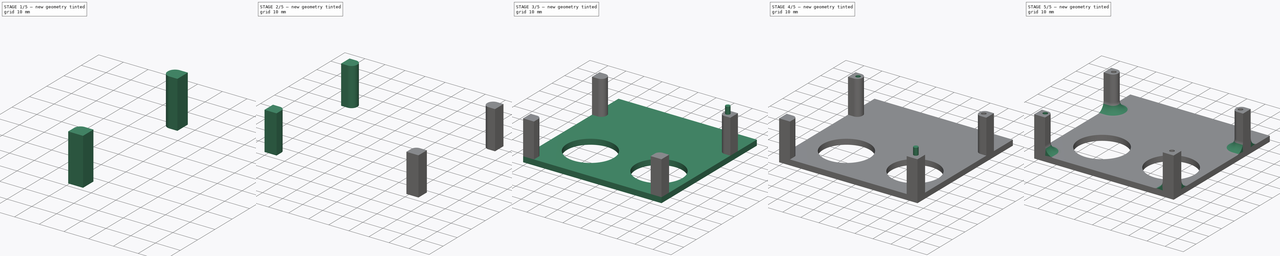
[diagram: build sequence overview — one tinted view per stage of 5, left to right]
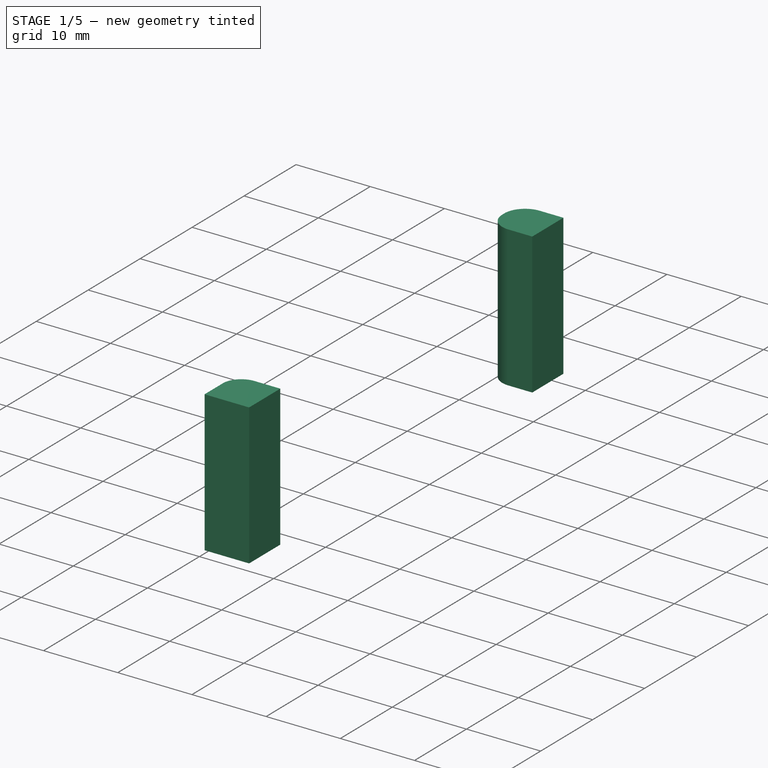
[diagram: stage 1 of 5 — iso view after this stage's code; geometry added in this stage tinted green]
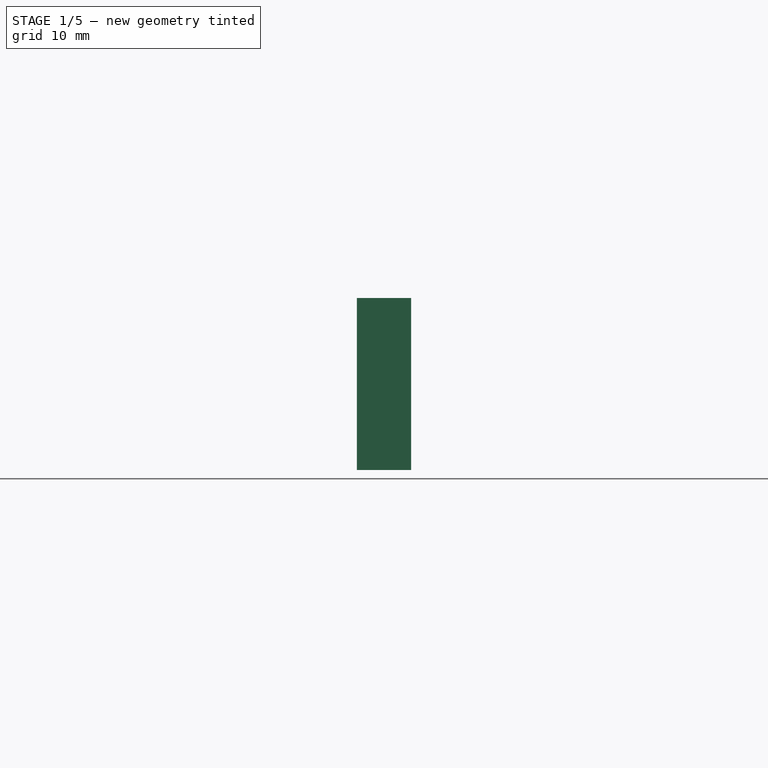
[diagram: stage 1 of 5 — front view after this stage's code; geometry added in this stage tinted green]
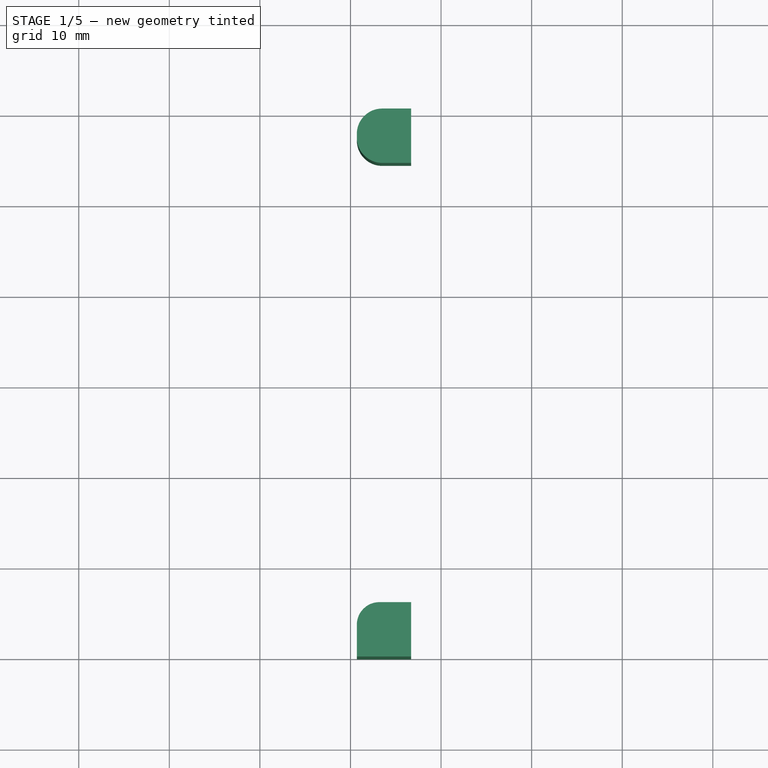
[diagram: stage 1 of 5 — top view after this stage's code; geometry added in this stage tinted green]
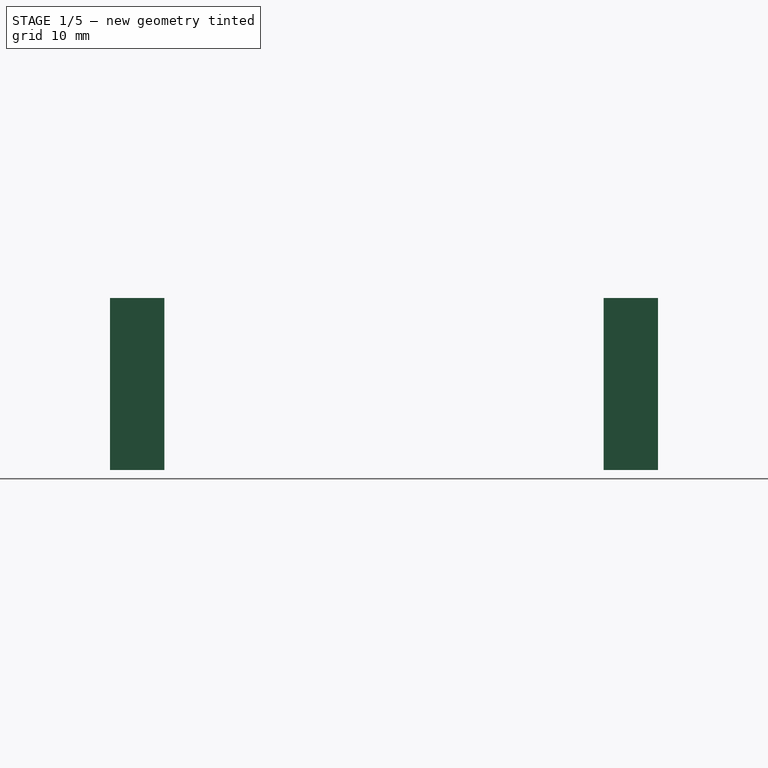
[diagram: stage 1 of 5 — right view after this stage's code; geometry added in this stage tinted green]
FCSTD DOCUMENT  (FreeCAD 0.19R24291 (Git))
Label: vacuum-tube-top-plate
License: All rights reserved
LicenseURL: http://en.wikipedia.org/wiki/All_rights_reserved
objects: Part::Fillet×5, Part::Cylinder×4, Part::Box×4, Part::Cut×4, Sketcher::SketchObject×1, Part::Extrusion×1, Part::MultiFuse×1
note: 20 computed .brp shape members not serialized (recipe doc carries the construction recipe); baked Part::Feature solids carry a one-line shape summary decoded from their .brp

FEATURE [Part::Box] Box001  label="post-br"
  AttacherType = Attacher::AttachEngine3D
  Height = 19
  Length = 6
  Placement = pos=(70.7,0,3) rot=(0,0,1;0rad)
  Width = 6
FEATURE [Part::Box] Box002  label="post-tr"
  AttacherType = Attacher::AttachEngine3D
  Height = 19
  Length = 6
  Placement = pos=(70.7,54.5,3) rot=(0,0,1;0rad)
  Width = 6
FEATURE [Part::Fillet] Fillet002
  Base = -> Box002
  Edges = 2 edges r=2.8: [Edge1,Edge3]
FEATURE [Part::Fillet] Fillet003
  Base = -> Box001
  Edges = 1 edges r=2.5: [Edge3]
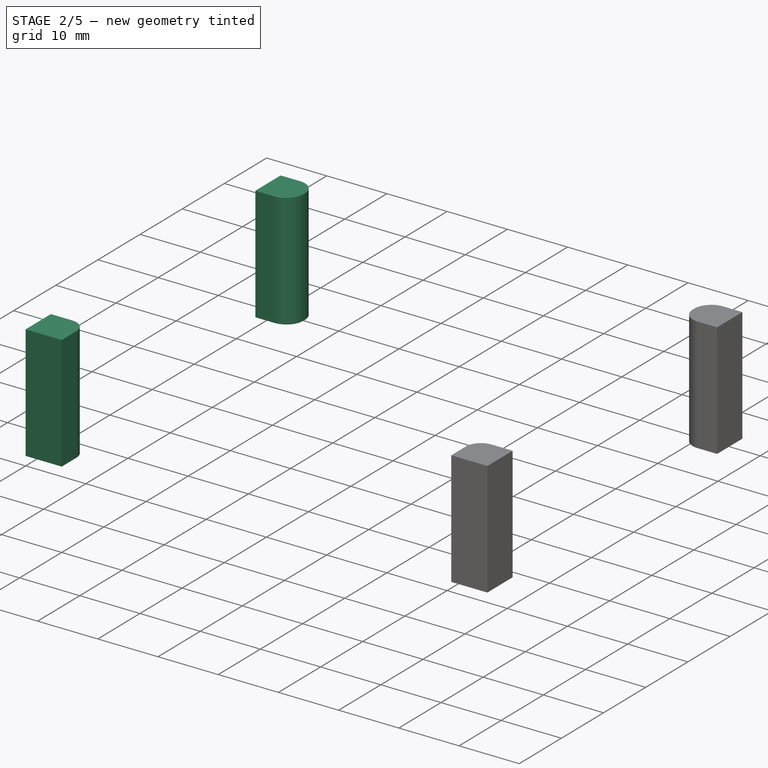
[diagram: stage 2 of 5 — iso view after this stage's code; geometry added in this stage tinted green]
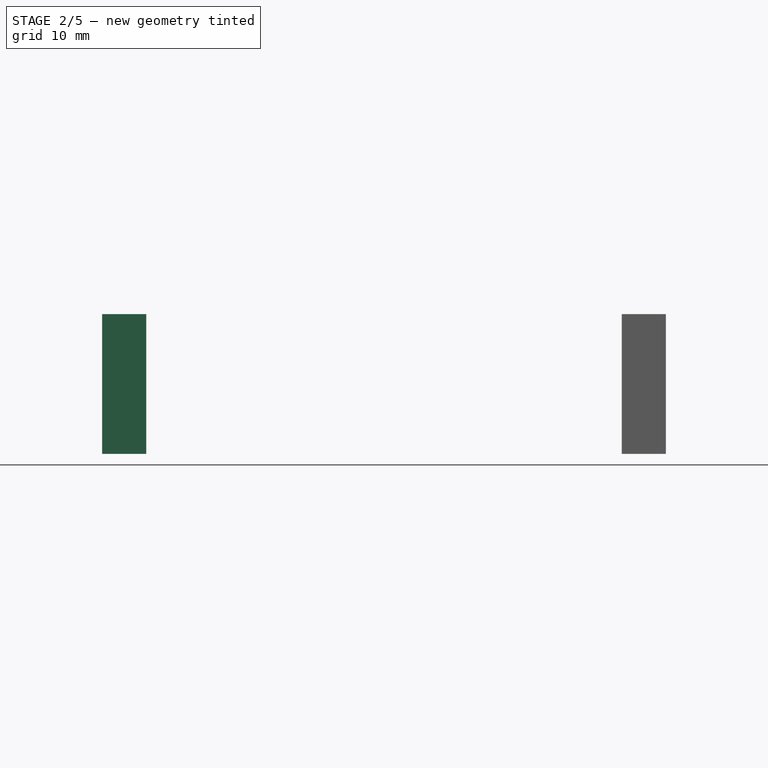
[diagram: stage 2 of 5 — front view after this stage's code; geometry added in this stage tinted green]
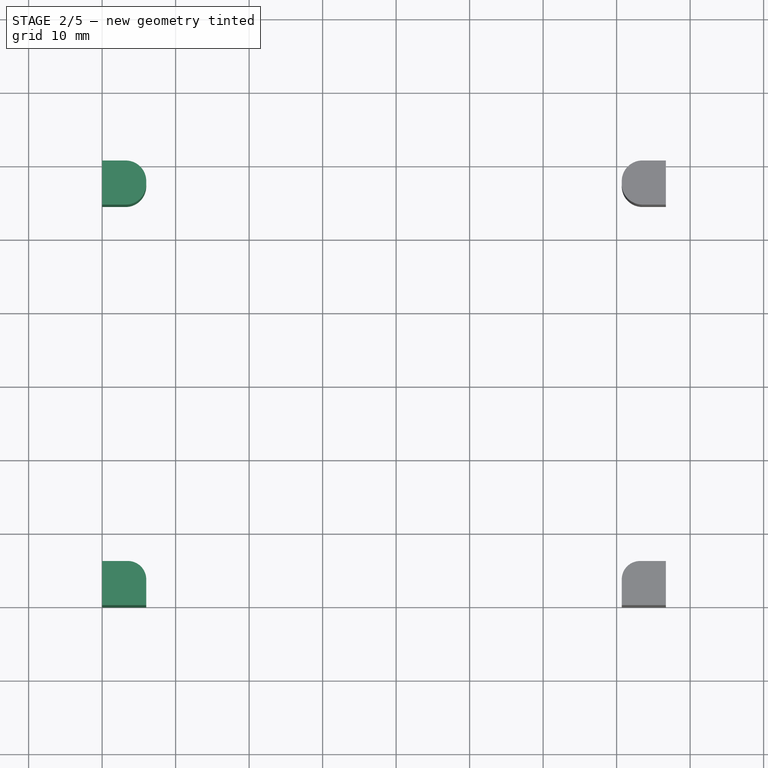
[diagram: stage 2 of 5 — top view after this stage's code; geometry added in this stage tinted green]
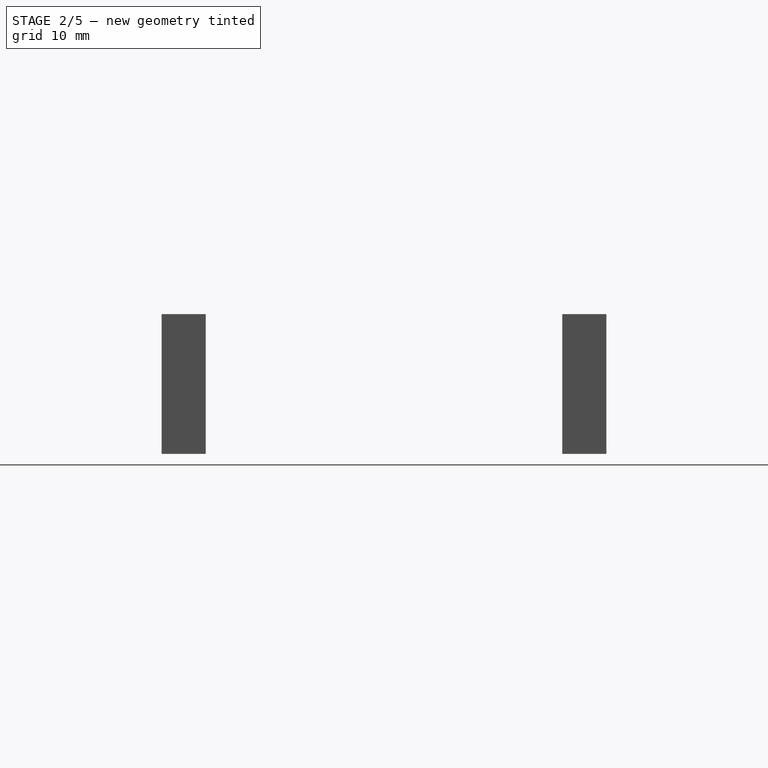
[diagram: stage 2 of 5 — right view after this stage's code; geometry added in this stage tinted green]
FEATURE [Part::Box] Box  label="post-bl"
  AttacherType = Attacher::AttachEngine3D
  Height = 19
  Length = 6
  Placement = pos=(0,0,3) rot=(0,0,1;0rad)
  Width = 6
FEATURE [Part::Box] Box003  label="post-tl"
  AttacherType = Attacher::AttachEngine3D
  Height = 19
  Length = 6
  Placement = pos=(0,54.5,3) rot=(0,0,1;0rad)
  Width = 6
FEATURE [Part::Fillet] Fillet
  Base = -> Box
  Edges = 1 edges r=2.5: [Edge7]
FEATURE [Part::Fillet] Fillet001
  Base = -> Box003
  Edges = 2 edges r=2.8: [Edge5,Edge7]
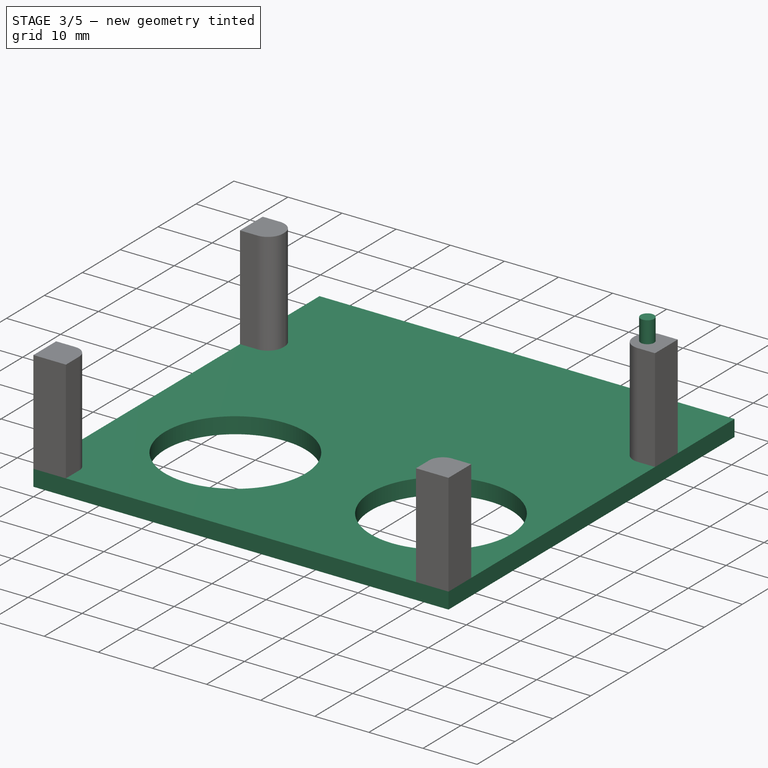
[diagram: stage 3 of 5 — iso view after this stage's code; geometry added in this stage tinted green]
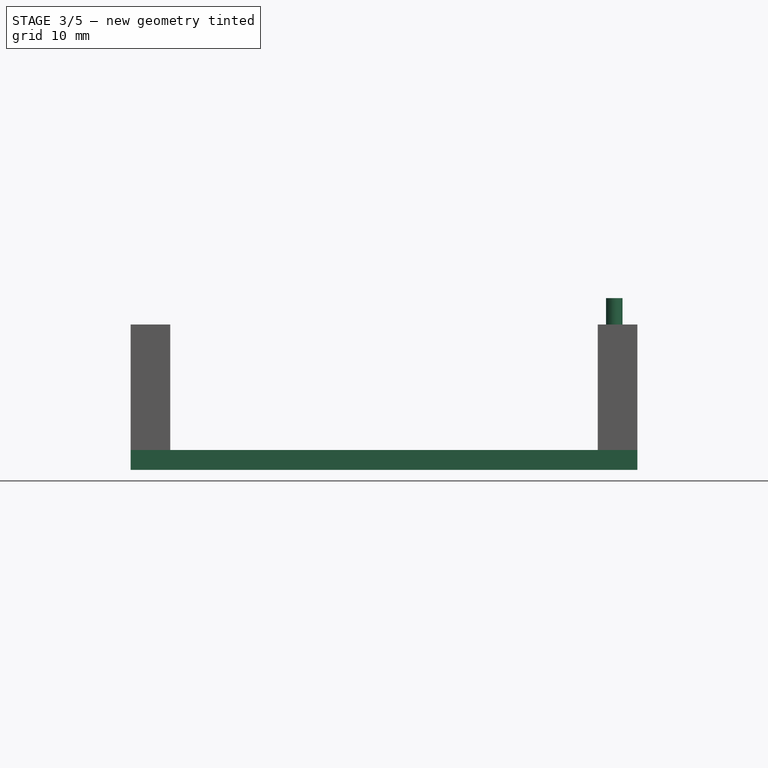
[diagram: stage 3 of 5 — front view after this stage's code; geometry added in this stage tinted green]
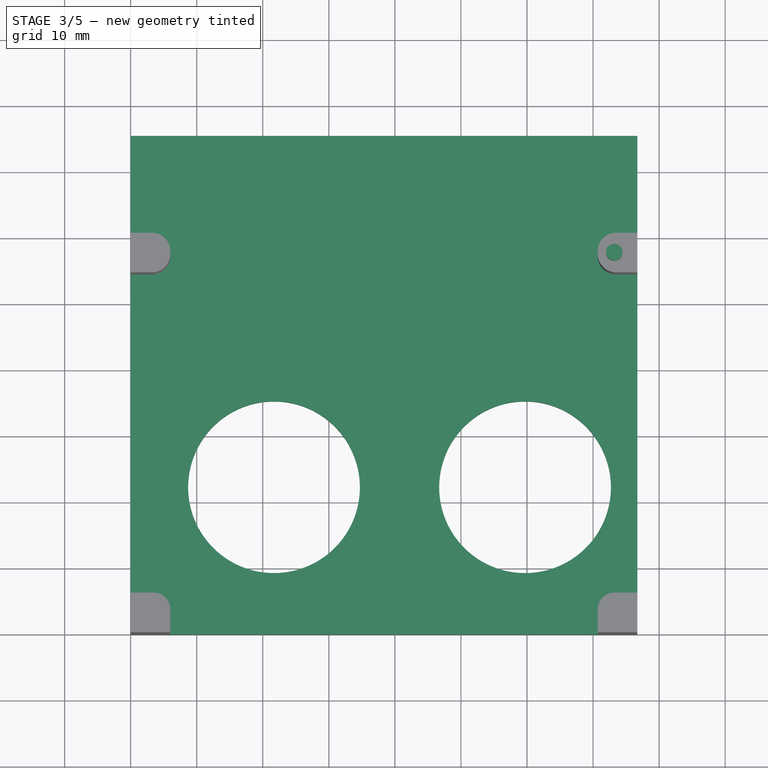
[diagram: stage 3 of 5 — top view after this stage's code; geometry added in this stage tinted green]
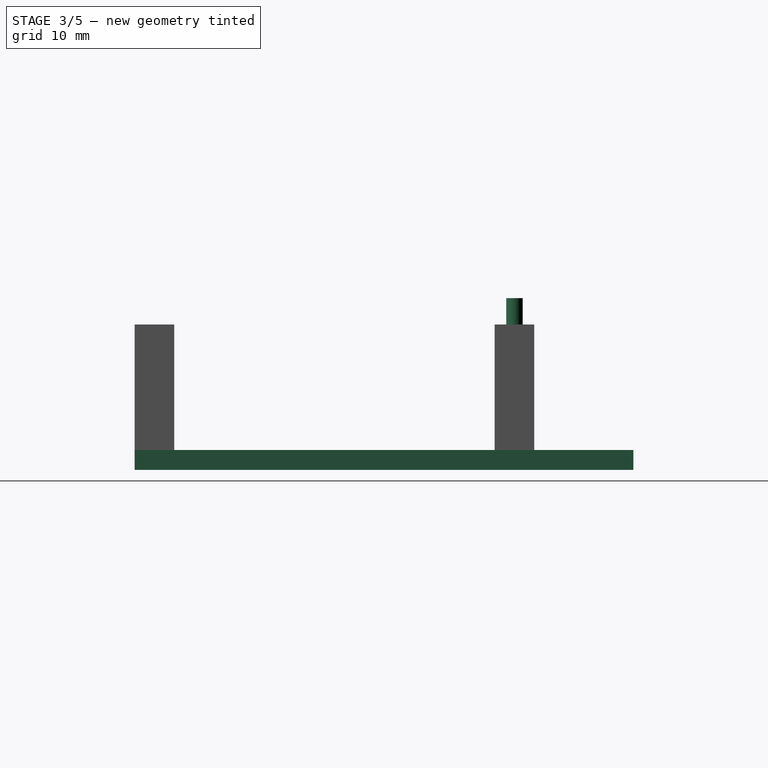
[diagram: stage 3 of 5 — right view after this stage's code; geometry added in this stage tinted green]
FEATURE [Sketcher::SketchObject] Sketch
  FullyConstrained = true
  sketch-geometry (6):
    g0: LineSegment StartX=0 StartY=0 StartZ=0 EndX=76.7 EndY=0 EndZ=0
    g1: LineSegment StartX=76.7 StartY=0 StartZ=0 EndX=76.7 EndY=75.5 EndZ=0
    g2: LineSegment StartX=76.7 StartY=75.5 StartZ=0 EndX=0 EndY=75.5 EndZ=0
    g3: LineSegment StartX=0 StartY=75.5 StartZ=0 EndX=0 EndY=0 EndZ=0
    g4: Circle CenterX=59.7 CenterY=22.3 CenterZ=0 NormalX=0 NormalY=0 NormalZ=1 AngleXU=0 Radius=13
    g5: Circle CenterX=21.7 CenterY=22.3 CenterZ=0 NormalX=0 NormalY=0 NormalZ=1 AngleXU=0 Radius=13
  constraints (17):
    c: Coincident(g0,g1)
    c: Coincident(g1,g2)
    c: Coincident(g2,g3)
    c: Coincident(g3,g0)
    c: Horizontal(g0)
    c: Horizontal(g2)
    c: Vertical(g1)
    c: Vertical(g3)
    c: Coincident(g0,g-1)
    c: DistanceX(g2,g2) = 76.7
    c: DistanceY(g1,g1) = 75.5
    c: Equal(g5,g4)
    c: DistanceY(g4,g5) = 0
    c: DistanceY(g0,g4) = 22.3
    c: DistanceX(g4,g0) = 17
    c: DistanceX(g5,g4) = 38
    c: Radius(g5) = 13
FEATURE [Part::Extrusion] Extrude  label="vacuum-tube-top-plate"
  Base = -> Sketch
  Dir = (0,0,1)
  DirMode = 2
  FaceMakerClass = Part::FaceMakerBullseye
  LengthFwd = 3
  LengthRev = 0
  Solid = true
  Symmetric = false
FEATURE [Part::Cylinder] Cylinder004  label="threaded-cutout-tr"
  Angle = 360
  AttacherType = Attacher::AttachEngine3D
  Height = 22
  Placement = pos=(73.2,57.5,4) rot=(0,0,1;0rad)
  Radius = 1.25
FEATURE [Part::MultiFuse] Fusion
  Shapes = -> [Fillet,Fillet001,Fillet002,Fillet003,Extrude]
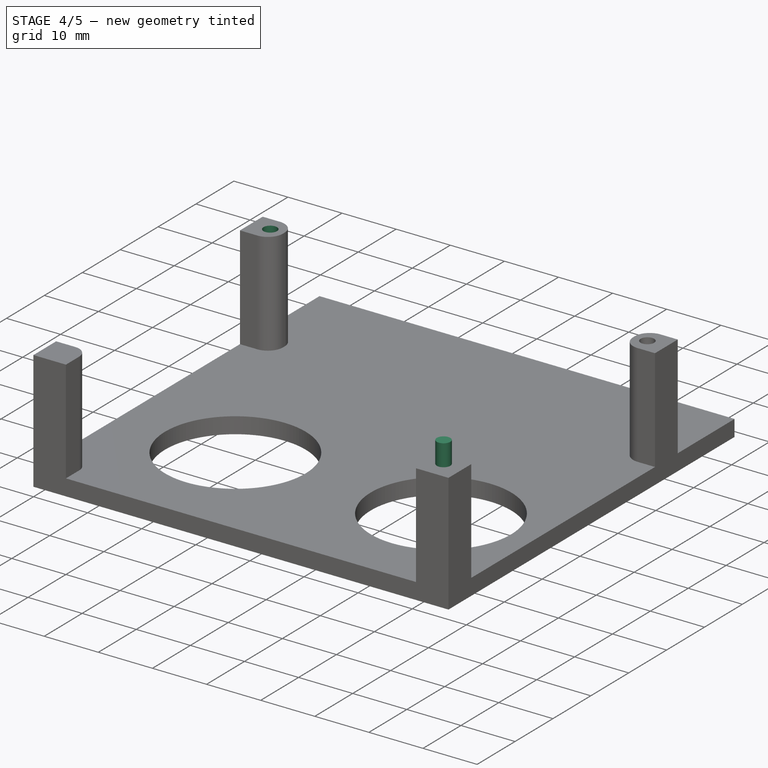
[diagram: stage 4 of 5 — iso view after this stage's code; geometry added in this stage tinted green]
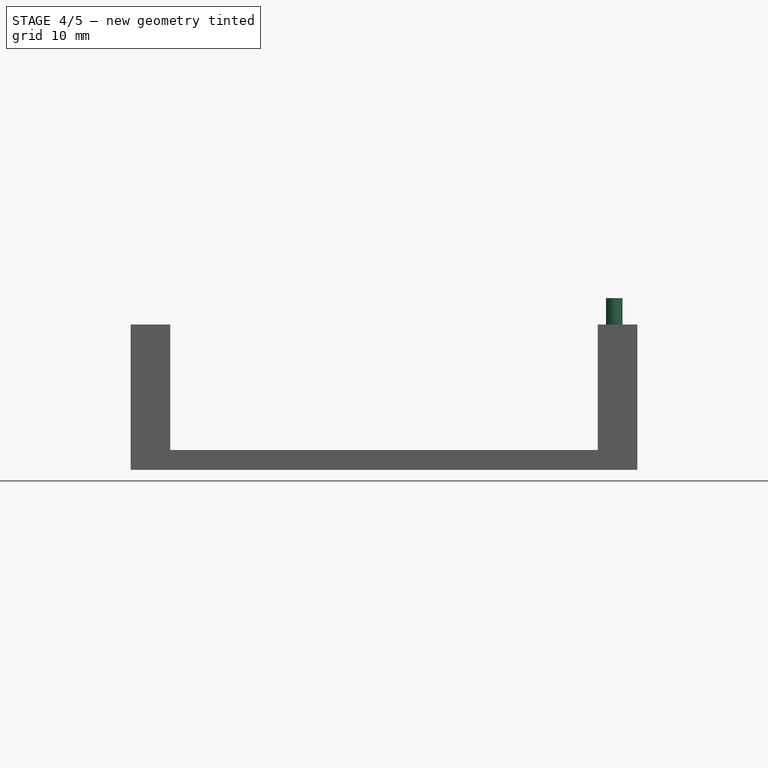
[diagram: stage 4 of 5 — front view after this stage's code; geometry added in this stage tinted green]
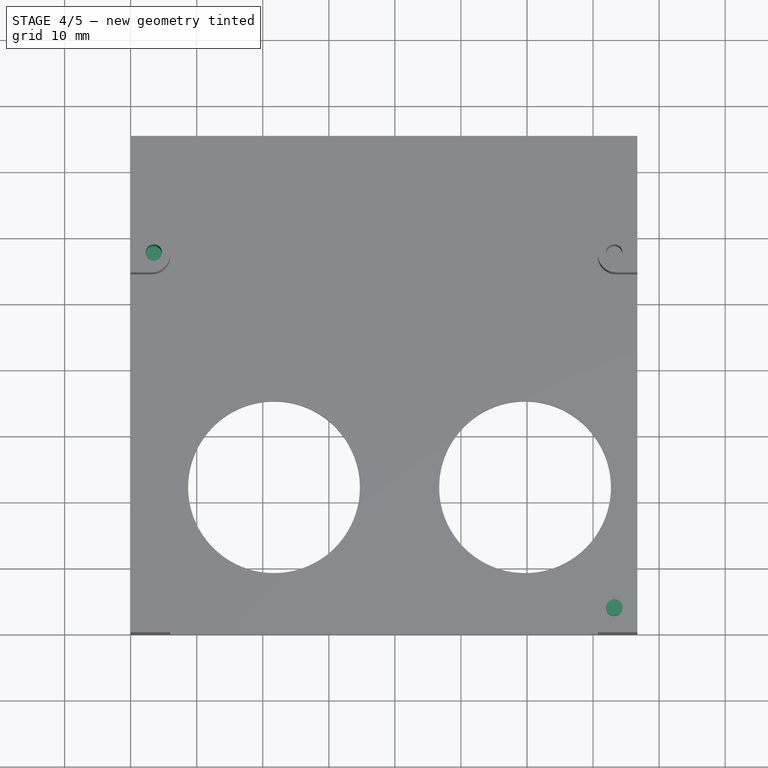
[diagram: stage 4 of 5 — top view after this stage's code; geometry added in this stage tinted green]
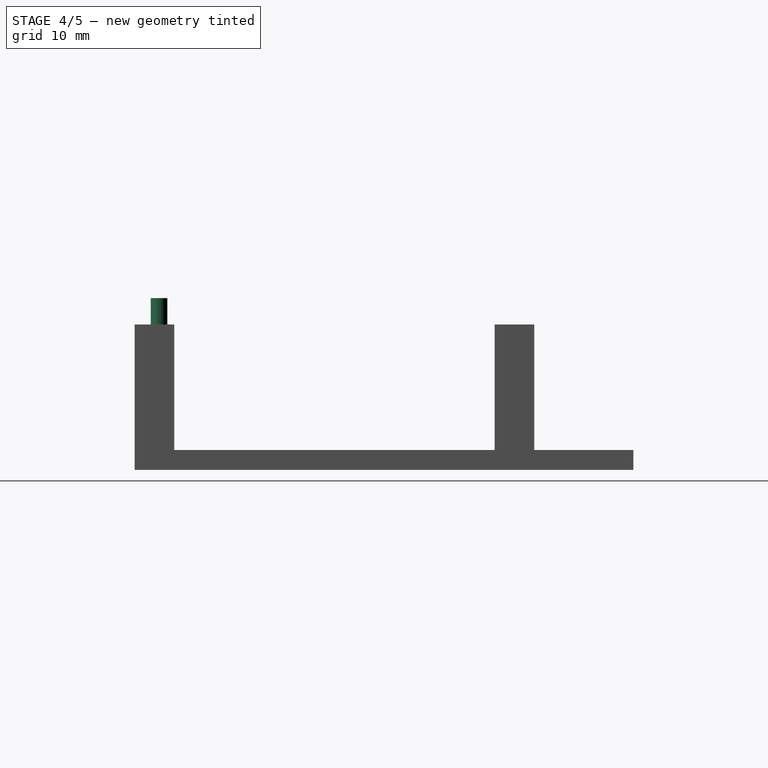
[diagram: stage 4 of 5 — right view after this stage's code; geometry added in this stage tinted green]
FEATURE [Part::Cylinder] Cylinder001  label="threaded-cutout-br"
  Angle = 360
  AttacherType = Attacher::AttachEngine3D
  Height = 22
  Placement = pos=(73.2,3.7,4) rot=(0,0,1;0rad)
  Radius = 1.25
FEATURE [Part::Cylinder] Cylinder003  label="threaded-cutout-tl"
  Angle = 360
  AttacherType = Attacher::AttachEngine3D
  Height = 22
  Placement = pos=(3.5,57.5,4) rot=(0,0,1;0rad)
  Radius = 1.25
FEATURE [Part::Cut] Cut
  Base = -> Fusion
  Tool = -> Cylinder004
FEATURE [Part::Cut] Cut001
  Base = -> Cut
  Tool = -> Cylinder003
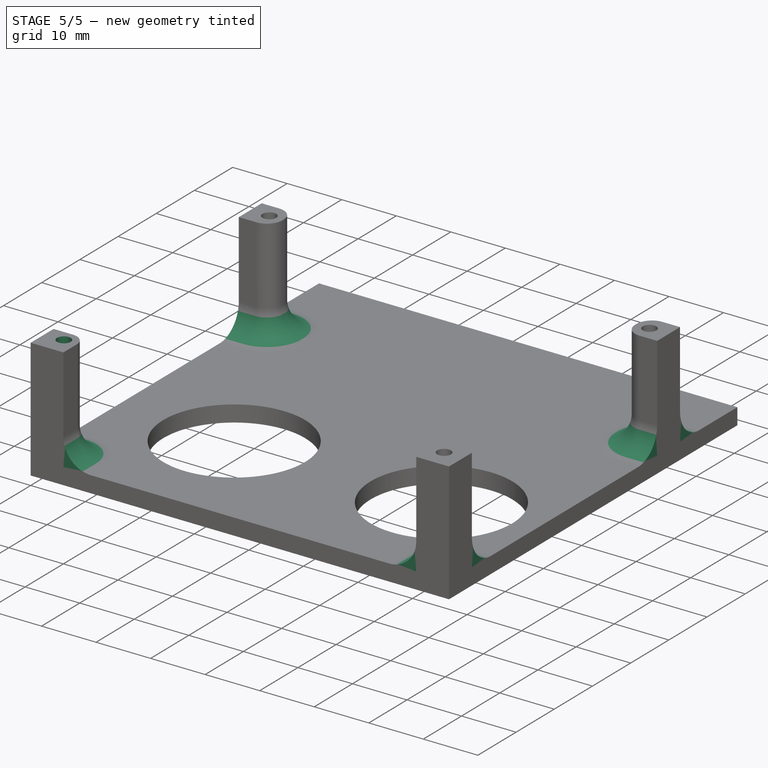
[diagram: stage 5 of 5 — iso view after this stage's code; geometry added in this stage tinted green]
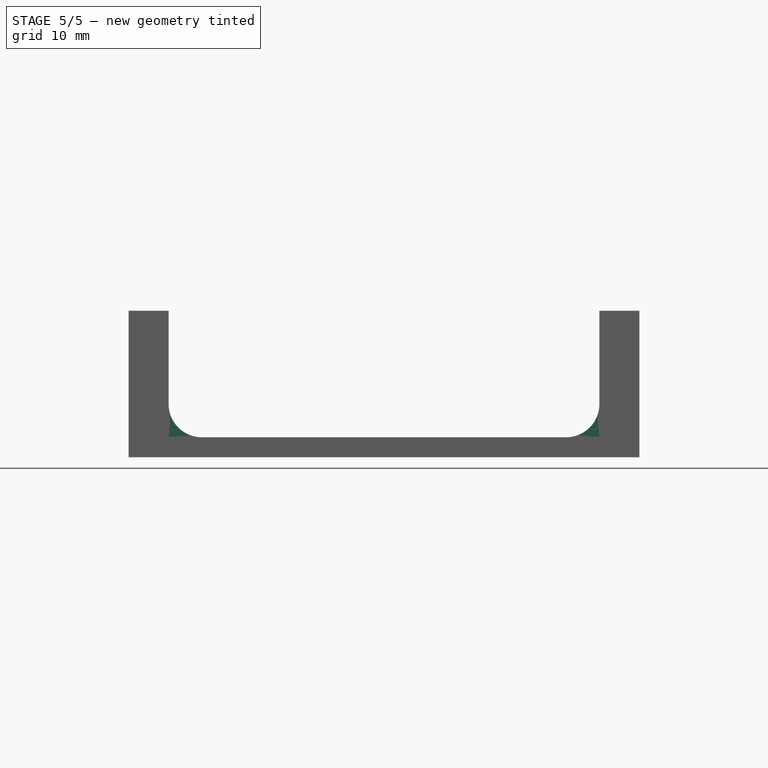
[diagram: stage 5 of 5 — front view after this stage's code; geometry added in this stage tinted green]
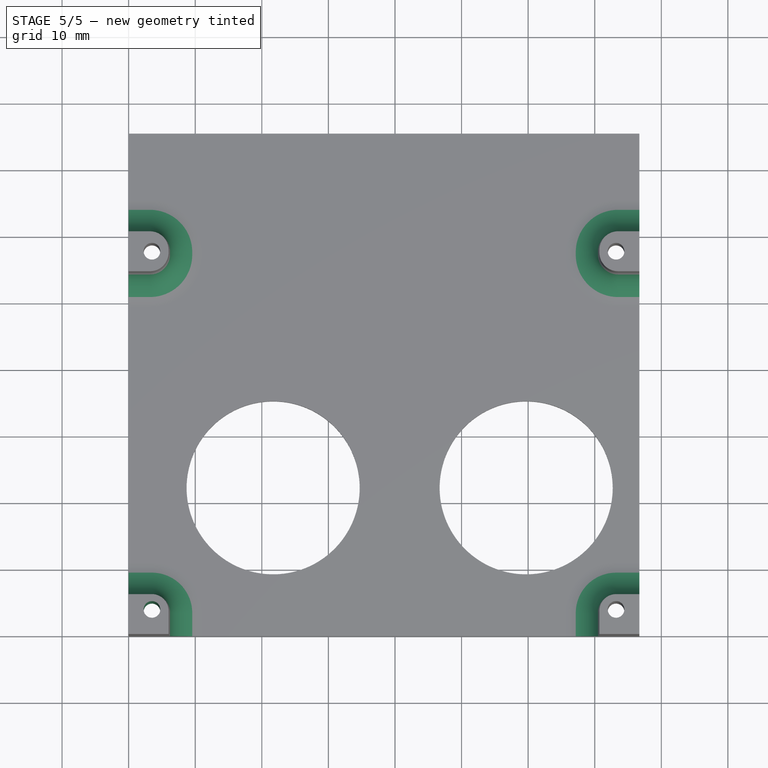
[diagram: stage 5 of 5 — top view after this stage's code; geometry added in this stage tinted green]
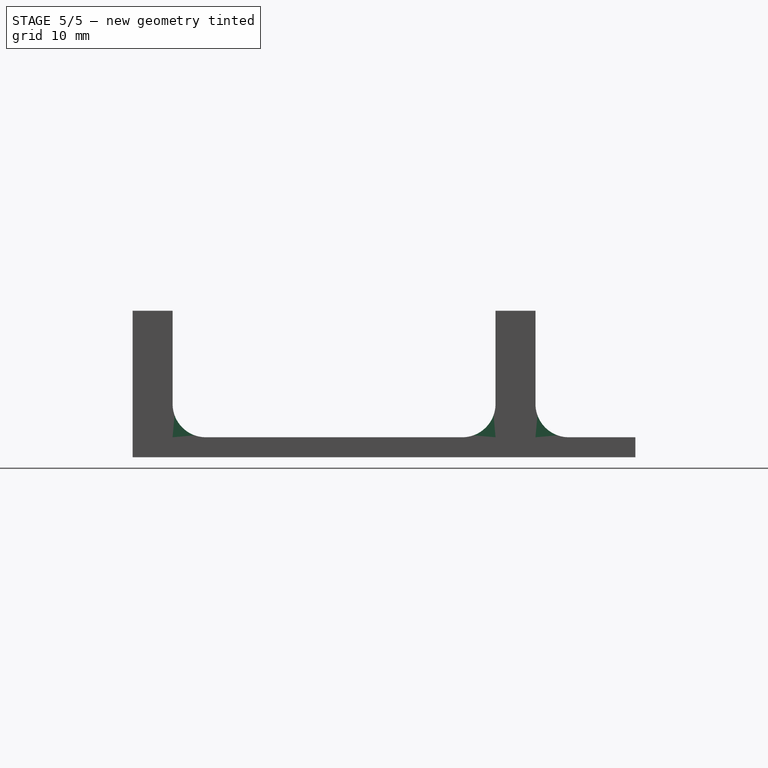
[diagram: stage 5 of 5 — right view after this stage's code; geometry added in this stage tinted green]
FEATURE [Part::Cylinder] Cylinder  label="threaded-cutout-bl"
  Angle = 360
  AttacherType = Attacher::AttachEngine3D
  Height = 22
  Placement = pos=(3.5,3.7,4) rot=(0,0,1;0rad)
  Radius = 1.25
FEATURE [Part::Cut] Cut002
  Base = -> Cut001
  Tool = -> Cylinder001
FEATURE [Part::Cut] Cut003  label="top-plate-with-posts"
  Base = -> Cut002
  Tool = -> Cylinder
FEATURE [Part::Fillet] Fillet004  label="top-plate-rounded-posts"
  Base = -> Cut003
  Edges = 16 edges r=5: [Edge29,Edge30,Edge31,Edge32,Edge33,Edge34,Edge35,Edge36,Edge38,Edge39,Edge40,Edge41,Edge42,Edge43,Edge44,Edge45]
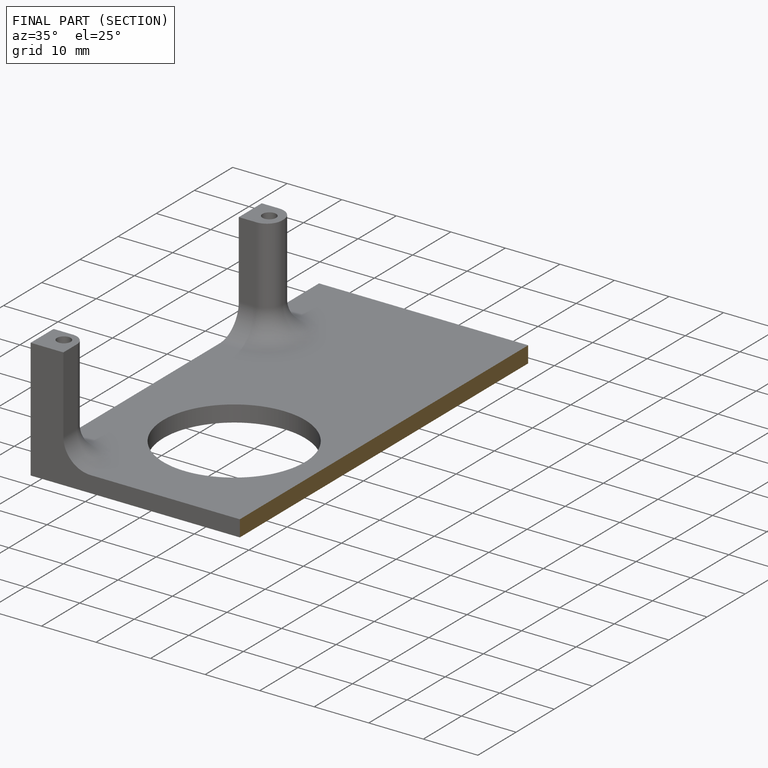
[diagram: finished part — half-section view (interior)]
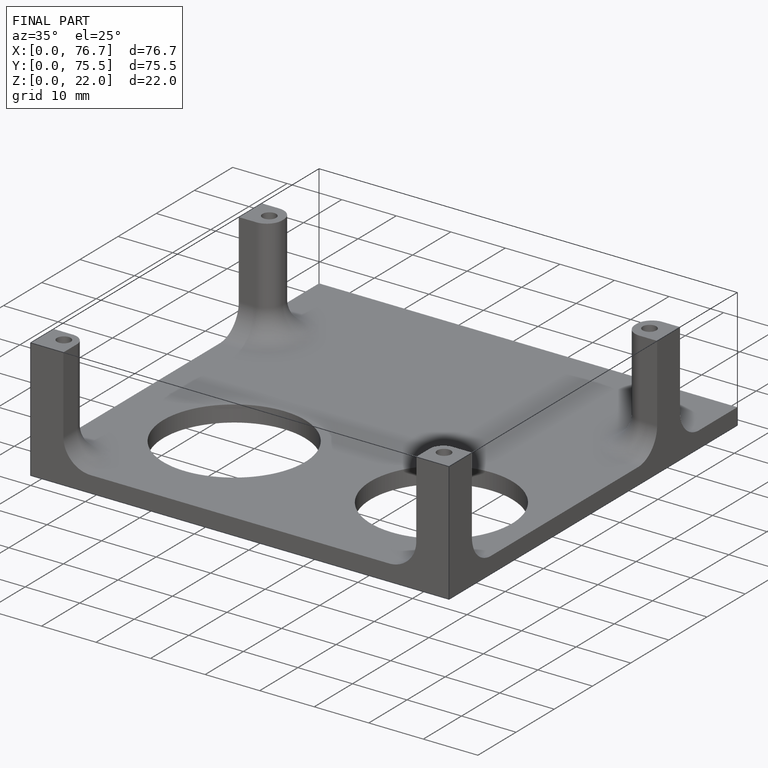
[diagram: finished part — iso view with bounding-box wireframe]
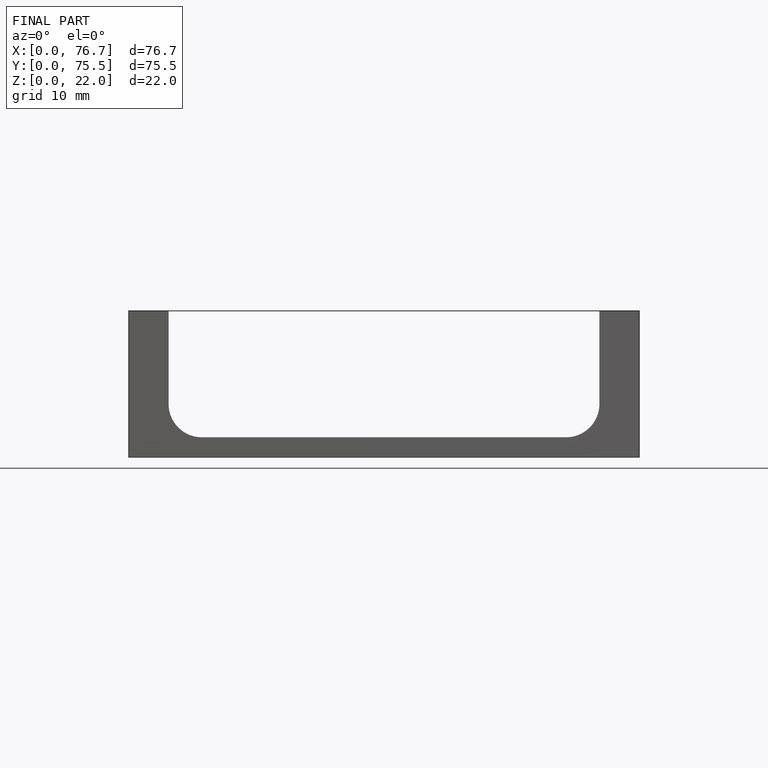
[diagram: finished part — front view with bounding-box wireframe]
